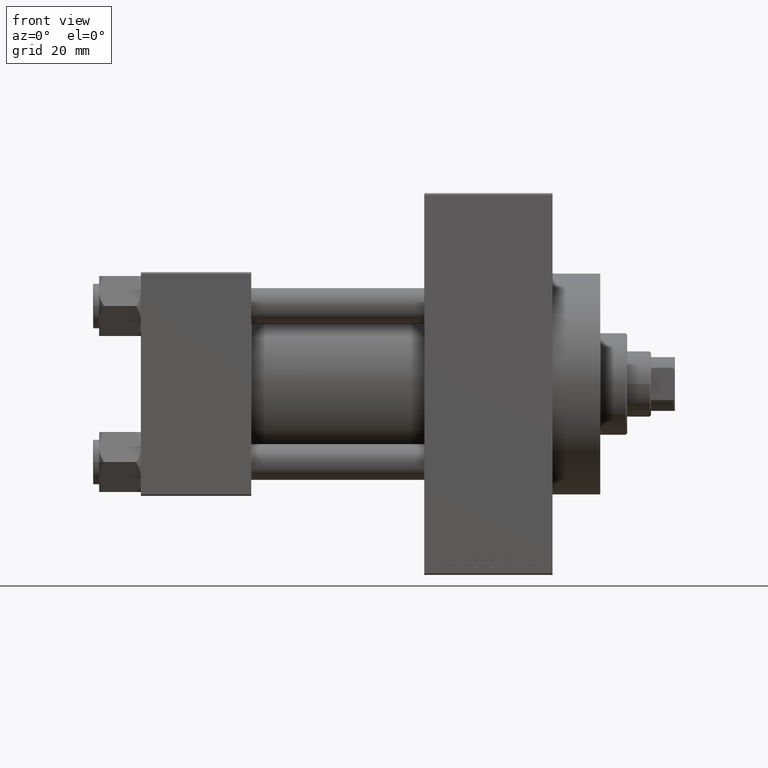
[diagram: clean part render]
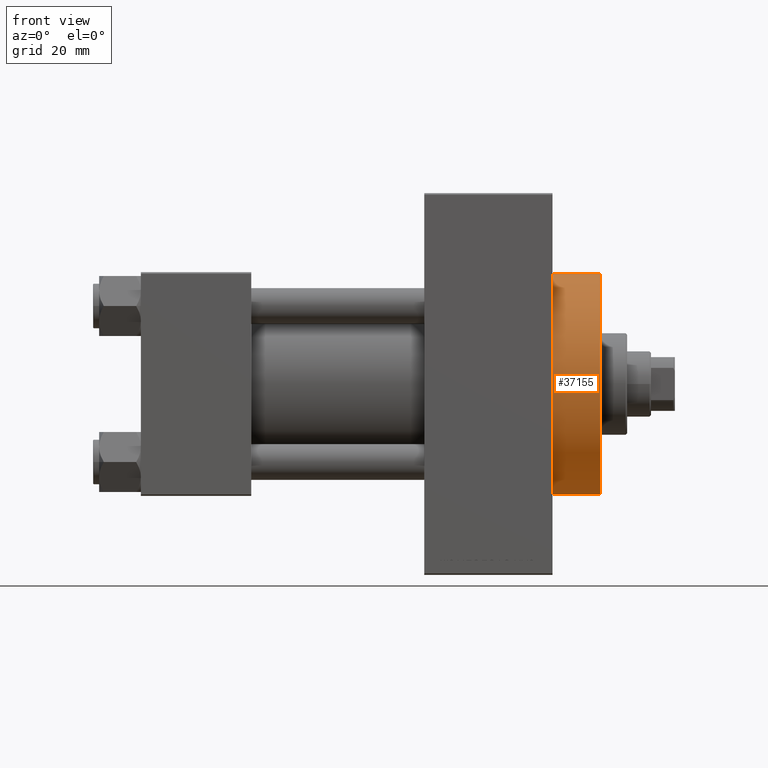
[diagram: same view with one face highlighted and labeled with its STEP entity id]
A machine part, front view. The second image highlights one B-rep face of the part: STEP entity #37155.
In plain terms, the highlighted cylindrical surface (partial cylindrical patch) has radius 37 mm, axis along (-1, -0, -0).
Its self-contained STEP definition (entity closure, byte-faithful):
#196 = DIRECTION ( 'NONE',  ( -1.000000000000000000, -0.000000000000000000, -0.000000000000000000 ) ) ;
#878 = VERTEX_POINT ( 'NONE', #31925 ) ;
#3804 = AXIS2_PLACEMENT_3D ( 'NONE', #47256, #7375, #26204 ) ;
#3954 = CARTESIAN_POINT ( 'NONE',  ( 154.0000000000000284, 4.531193156845206793E-15, -37.00000000000000000 ) ) ;
#4031 = FACE_OUTER_BOUND ( 'NONE', #33921, .T. ) ;
#5429 = EDGE_CURVE ( 'NONE', #9089, #26270, #15449, .T. ) ;
#5715 = EDGE_CURVE ( 'NONE', #878, #20396, #7530, .T. ) ;
#6701 = ORIENTED_EDGE ( 'NONE', *, *, #20659, .T. ) ;
#7196 = DIRECTION ( 'NONE',  ( 1.000000000000000000, 0.000000000000000000, 0.000000000000000000 ) ) ;
#7333 = CIRCLE ( 'NONE', #14930, 37.00000000000000000 ) ;
#7375 = DIRECTION ( 'NONE',  ( -1.000000000000000000, -0.000000000000000000, -0.000000000000000000 ) ) ;
#7491 = ORIENTED_EDGE ( 'NONE', *, *, #5429, .T. ) ;
#7530 = LINE ( 'NONE', #3954, #13774 ) ;
#9089 = VERTEX_POINT ( 'NONE', #17301 ) ;
#12072 = DIRECTION ( 'NONE',  ( 0.000000000000000000, 0.000000000000000000, -1.000000000000000000 ) ) ;
#12367 = EDGE_CURVE ( 'NONE', #9089, #878, #40589, .T. ) ;
#12547 = CARTESIAN_POINT ( 'NONE',  ( 138.0000000000000000, 0.000000000000000000, 37.00000000000000000 ) ) ;
#13774 = VECTOR ( 'NONE', #33066, 1000.000000000000000 ) ;
#14930 = AXIS2_PLACEMENT_3D ( 'NONE', #36314, #7196, #21965 ) ;
#15449 = LINE ( 'NONE', #32894, #45033 ) ;
#16266 = ORIENTED_EDGE ( 'NONE', *, *, #12367, .F. ) ;
#17301 = CARTESIAN_POINT ( 'NONE',  ( 154.0000000000000284, 0.000000000000000000, 37.00000000000000000 ) ) ;
#20396 = VERTEX_POINT ( 'NONE', #25612 ) ;
#20659 = EDGE_CURVE ( 'NONE', #26270, #20396, #7333, .T. ) ;
#21965 = DIRECTION ( 'NONE',  ( 0.000000000000000000, 0.000000000000000000, -1.000000000000000000 ) ) ;
#23497 = DIRECTION ( 'NONE',  ( 1.000000000000000000, 0.000000000000000000, 0.000000000000000000 ) ) ;
#25612 = CARTESIAN_POINT ( 'NONE',  ( 138.0000000000000000, 4.531193156845206793E-15, -37.00000000000000000 ) ) ;
#26204 = DIRECTION ( 'NONE',  ( 0.000000000000000000, 0.000000000000000000, 1.000000000000000000 ) ) ;
#26270 = VERTEX_POINT ( 'NONE', #12547 ) ;
#26853 = AXIS2_PLACEMENT_3D ( 'NONE', #30198, #23497, #12072 ) ;
#30198 = CARTESIAN_POINT ( 'NONE',  ( 154.0000000000000284, 0.000000000000000000, 0.000000000000000000 ) ) ;
#31467 = ORIENTED_EDGE ( 'NONE', *, *, #5715, .F. ) ;
#31925 = CARTESIAN_POINT ( 'NONE',  ( 154.0000000000000284, 4.531193156845206793E-15, -37.00000000000000000 ) ) ;
#32894 = CARTESIAN_POINT ( 'NONE',  ( 154.0000000000000284, 0.000000000000000000, 37.00000000000000000 ) ) ;
#33066 = DIRECTION ( 'NONE',  ( -1.000000000000000000, -0.000000000000000000, -0.000000000000000000 ) ) ;
#33921 = EDGE_LOOP ( 'NONE', ( #31467, #16266, #7491, #6701 ) ) ;
#36314 = CARTESIAN_POINT ( 'NONE',  ( 138.0000000000000000, 0.000000000000000000, 0.000000000000000000 ) ) ;
#37155 = ADVANCED_FACE ( 'NONE', ( #4031 ), #40069, .T. ) ;
#40069 = CYLINDRICAL_SURFACE ( 'NONE', #3804, 37.00000000000000000 ) ;
#40589 = CIRCLE ( 'NONE', #26853, 37.00000000000000000 ) ;
#45033 = VECTOR ( 'NONE', #196, 1000.000000000000000 ) ;
#47256 = CARTESIAN_POINT ( 'NONE',  ( 154.0000000000000284, 0.000000000000000000, 0.000000000000000000 ) ) ;